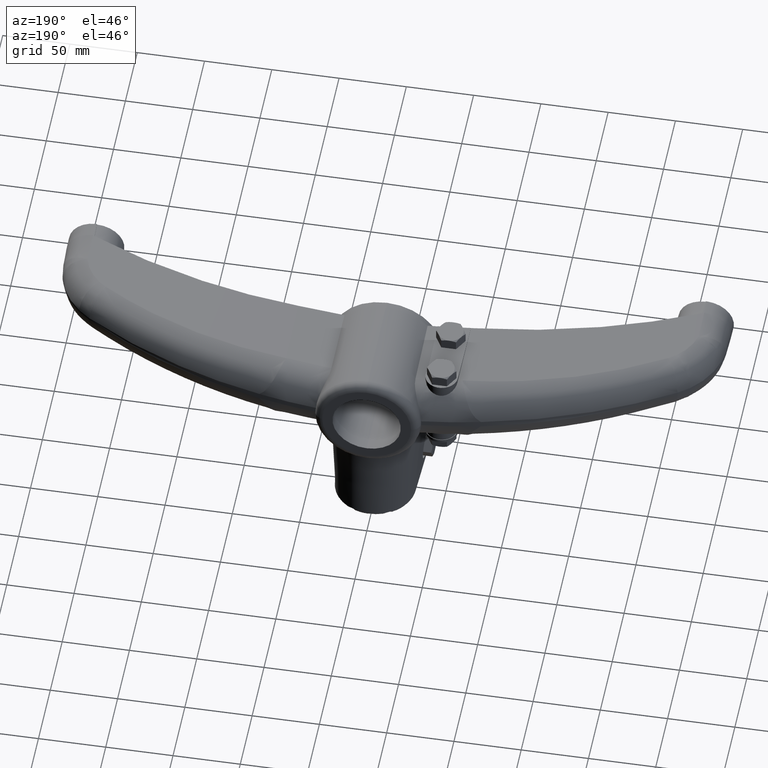
[diagram: clean part render]
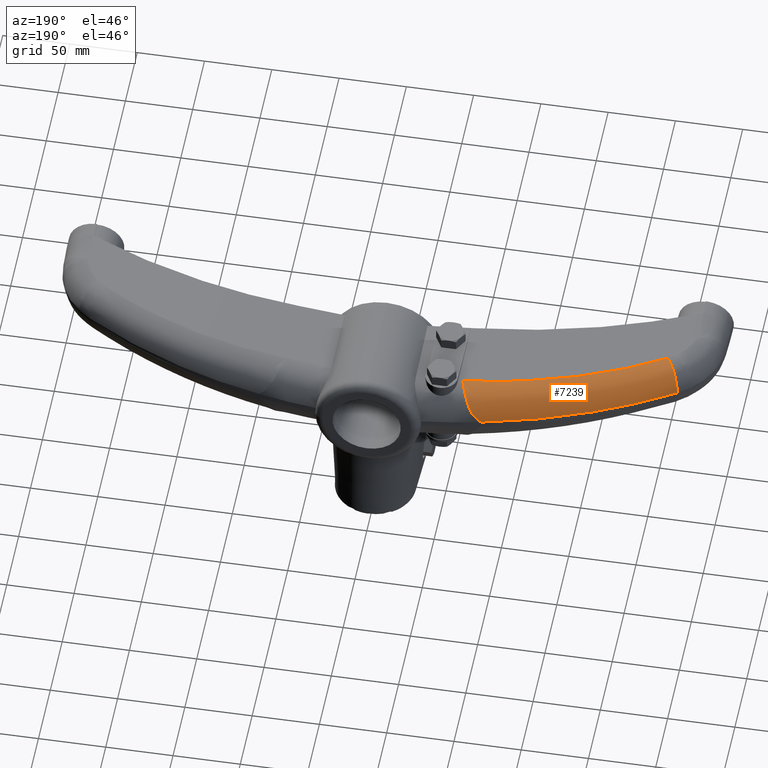
[diagram: same view with one face highlighted and labeled with its STEP entity id]
A machine part, auxiliary view. The second image highlights one B-rep face of the part: STEP entity #7239.
In plain terms, the highlighted face is a freeform B-spline surface patch.
Its self-contained STEP definition (entity closure, byte-faithful):
#437=CARTESIAN_POINT('',(-8.237888704673E1,1.862519706577E2,2.199974635272E0));
#439=CARTESIAN_POINT('',(-8.237888704673E1,1.862519706577E2,2.199974635272E0));
#440=CARTESIAN_POINT('',(-1.307547812898E2,1.761760374490E2,1.985017592644E0));
#441=CARTESIAN_POINT('',(-1.770685947099E2,1.571887857447E2,1.445394351976E0));
#442=CARTESIAN_POINT('',(-2.184670225128E2,1.305753383576E2,6.965159995473E-1));
#1802=CARTESIAN_POINT('',(-8.237888704673E1,1.862519706577E2,2.199974635272E0));
#1803=CARTESIAN_POINT('',(-8.114796420171E1,1.865083525173E2,3.260792035630E0));
#1804=CARTESIAN_POINT('',(-7.889253087060E1,1.868058613701E2,5.492979980444E0));
#1805=CARTESIAN_POINT('',(-7.624155421469E1,1.864935420018E2,9.026073202448E0));
#1806=CARTESIAN_POINT('',(-7.394246389858E1,1.853280115980E2,1.276066278407E1));
#1807=CARTESIAN_POINT('',(-7.194061495438E1,1.832201028768E2,1.639624248104E1));
#1808=CARTESIAN_POINT('',(-7.015360923998E1,1.802454378563E2,1.959664616671E1));
#1809=CARTESIAN_POINT('',(-6.852169718450E1,1.765664068193E2,2.210728638835E1));
#1810=CARTESIAN_POINT('',(-6.701070403855E1,1.723940575322E2,2.376550215468E1));
#1811=CARTESIAN_POINT('',(-6.605541198926E1,1.693967549136E2,2.424068192369E1));
#1812=CARTESIAN_POINT('',(-6.560508256716E1,1.679069407090E2,2.431265706786E1));
#1825=CARTESIAN_POINT('',(-6.560508256716E1,1.679069407090E2,2.431265706786E1));
#1857=CARTESIAN_POINT('',(-2.089255815380E2,1.150942233777E2,1.986708516746E1));
#1858=CARTESIAN_POINT('',(-1.980522365802E2,1.220475199992E2,2.010135453668E1));
#1859=CARTESIAN_POINT('',(-1.757176299903E2,1.346968730202E2,2.063983945585E1));
#1860=CARTESIAN_POINT('',(-1.402684039126E2,1.499858450890E2,2.166149421004E1));
#1861=CARTESIAN_POINT('',(-1.034224617610E2,1.613296849022E2,2.288245989294E1));
#1862=CARTESIAN_POINT('',(-7.832219530522E1,1.661637987845E2,2.381533221987E1));
#1863=CARTESIAN_POINT('',(-6.560508256716E1,1.679069407090E2,2.431265706786E1));
#2152=CARTESIAN_POINT('',(-2.089255815380E2,1.150942233777E2,1.986708516746E1));
#2153=CARTESIAN_POINT('',(-2.101120338507E2,1.169520643588E2,1.975006261289E1));
#2154=CARTESIAN_POINT('',(-2.126281950323E2,1.209152470977E2,1.871973566632E1));
#2155=CARTESIAN_POINT('',(-2.160252088080E2,1.263569649752E2,1.425546325032E1));
#2156=CARTESIAN_POINT('',(-2.181440395685E2,1.298654348860E2,7.615237549496E0));
#2157=CARTESIAN_POINT('',(-2.184965367055E2,1.305563648221E2,2.892764954565E0));
#2158=CARTESIAN_POINT('',(-2.184670225128E2,1.305753383576E2,
6.965159995473E-1));
#2801=VERTEX_POINT('',#437);
#2802=VERTEX_POINT('',#442);
#2882=VERTEX_POINT('',#1825);
#2884=VERTEX_POINT('',#1857);
#7136=CARTESIAN_POINT('',(-2.198161286307E2,1.296936933165E2,
8.441682517015E-2));
#7137=CARTESIAN_POINT('',(-2.193627955492E2,1.299876857008E2,
9.266250145631E-2));
#7138=CARTESIAN_POINT('',(-2.165137421147E2,1.318272236244E2,
1.442360696592E-1));
#7139=CARTESIAN_POINT('',(-2.112280639025E2,1.351464590947E2,
2.370539957385E-1));
#7140=CARTESIAN_POINT('',(-2.038915220344E2,1.395398394672E2,
3.592898096168E-1));
#7141=CARTESIAN_POINT('',(-1.964633567195E2,1.437771434403E2,
4.765262217713E-1));
#7142=CARTESIAN_POINT('',(-1.889455039758E2,1.478571500693E2,
5.887326039298E-1));
#7143=CARTESIAN_POINT('',(-1.813417614062E2,1.517776684705E2,
6.957909195500E-1));
#7144=CARTESIAN_POINT('',(-1.736565016590E2,1.555364032427E2,
7.975530984652E-1));
#7145=CARTESIAN_POINT('',(-1.658931041539E2,1.591316893474E2,
8.938938252446E-1));
#7146=CARTESIAN_POINT('',(-1.580545258005E2,1.625621148403E2,
9.847074491379E-1));
#7147=CARTESIAN_POINT('',(-1.501440361665E2,1.658261785482E2,1.069881234499E0));
#7148=CARTESIAN_POINT('',(-1.421650342916E2,1.689223971349E2,1.149287807820E0));
#7149=CARTESIAN_POINT('',(-1.341210013937E2,1.718493342297E2,1.222781553527E0));
#7150=CARTESIAN_POINT('',(-1.260154745891E2,1.746056113275E2,1.290211187440E0));
#7151=CARTESIAN_POINT('',(-1.178521706516E2,1.771898754521E2,1.351438386928E0));
#7152=CARTESIAN_POINT('',(-1.096347594582E2,1.796008849861E2,1.406320675663E0));
#7153=CARTESIAN_POINT('',(-1.013668977404E2,1.818374865379E2,1.454719207424E0));
#7154=CARTESIAN_POINT('',(-9.305198598973E1,1.838986698440E2,1.496423603884E0));
#7155=CARTESIAN_POINT('',(-8.469272176520E1,1.857836403824E2,1.531180180682E0));
#7156=CARTESIAN_POINT('',(-7.629006659248E1,1.874919402756E2,1.558822991836E0));
#7157=CARTESIAN_POINT('',(-7.030710912794E1,1.885765699462E2,1.573394756763E0));
#7158=CARTESIAN_POINT('',(-6.713000838617E1,1.891133517167E2,1.579624433327E0));
#7159=CARTESIAN_POINT('',(-6.677428187783E1,1.891729629376E2,1.580303101191E0));
#7160=CARTESIAN_POINT('',(-2.201599948453E2,1.298875482062E2,1.150786667182E1));
#7161=CARTESIAN_POINT('',(-2.197060626784E2,1.301822411432E2,1.151667646144E1));
#7162=CARTESIAN_POINT('',(-2.168532411153E2,1.320261733085E2,1.157210871244E1));
#7163=CARTESIAN_POINT('',(-2.115605372044E2,1.353534623470E2,1.167569983752E1));
#7164=CARTESIAN_POINT('',(-2.042141704869E2,1.397577886053E2,1.182116680032E1));
#7165=CARTESIAN_POINT('',(-1.967760176980E2,1.440059257611E2,1.197009103128E1));
#7166=CARTESIAN_POINT('',(-1.892479616646E2,1.480966806014E2,1.212242236937E1));
#7167=CARTESIAN_POINT('',(-1.816337077781E2,1.520279026249E2,1.227804717261E1));
#7168=CARTESIAN_POINT('',(-1.739375991869E2,1.557972973019E2,1.243682542581E1));
#7169=CARTESIAN_POINT('',(-1.661630083902E2,1.594031887075E2,1.259863731393E1));
#7170=CARTESIAN_POINT('',(-1.583128739050E2,1.628441587532E2,1.276337524111E1));
#7171=CARTESIAN_POINT('',(-1.503904235046E2,1.661187078195E2,1.293092140373E1));
#7172=CARTESIAN_POINT('',(-1.423990028243E2,1.692253548565E2,1.310114713450E1));
#7173=CARTESIAN_POINT('',(-1.343420393158E2,1.721626611841E2,1.327391208834E1));
#7174=CARTESIAN_POINT('',(-1.262230498265E2,1.749292305602E2,1.344907021500E1));
#7175=CARTESIAN_POINT('',(-1.180457206396E2,1.775236936823E2,1.362647438829E1));
#7176=CARTESIAN_POINT('',(-1.098136959461E2,1.799447891297E2,1.380597381817E1));
#7177=CARTESIAN_POINT('',(-1.015305473760E2,1.821913575906E2,1.398741553170E1));
#7178=CARTESIAN_POINT('',(-9.319951395491E1,1.842623944017E2,1.417061805310E1));
#7179=CARTESIAN_POINT('',(-8.482324902763E1,1.861570708801E2,1.435539674797E1));
#7180=CARTESIAN_POINT('',(-7.640296608460E1,1.878748356772E2,1.454164549208E1));
#7181=CARTESIAN_POINT('',(-7.040719438934E1,1.889659593612E2,1.467462142269E1));
#7182=CARTESIAN_POINT('',(-6.722318467555E1,1.895061168300E2,1.474533985939E1));
#7183=CARTESIAN_POINT('',(-6.686668324943E1,1.895661050970E2,1.475325923714E1));
#7184=CARTESIAN_POINT('',(-2.159756518816E2,1.231655134358E2,1.975144312104E1));
#7185=CARTESIAN_POINT('',(-2.155310086349E2,1.234539579962E2,1.976064596009E1));
#7186=CARTESIAN_POINT('',(-2.127364572395E2,1.252586082876E2,1.981877524376E1));
#7187=CARTESIAN_POINT('',(-2.075506443040E2,1.285128544377E2,1.992998608469E1));
#7188=CARTESIAN_POINT('',(-2.003502142130E2,1.328152051066E2,2.009202071489E1));
#7189=CARTESIAN_POINT('',(-1.930577506699E2,1.369593459504E2,2.026363106016E1));
#7190=CARTESIAN_POINT('',(-1.856754518212E2,1.409439616735E2,2.044475254647E1));
#7191=CARTESIAN_POINT('',(-1.782072912467E2,1.447668049387E2,2.063527485036E1));
#7192=CARTESIAN_POINT('',(-1.706578753799E2,1.484254970530E2,2.083506450926E1));
#7193=CARTESIAN_POINT('',(-1.630308658895E2,1.519182828336E2,2.104400647100E1));
#7194=CARTESIAN_POINT('',(-1.553295073778E2,1.552436802857E2,2.126199248304E1));
#7195=CARTESIAN_POINT('',(-1.475573322272E2,1.584001462876E2,2.148890198208E1));
#7196=CARTESIAN_POINT('',(-1.397179906834E2,1.613861700176E2,2.172460653594E1));
#7197=CARTESIAN_POINT('',(-1.318152145517E2,1.642002942259E2,2.196897106015E1));
#7198=CARTESIAN_POINT('',(-1.238528262593E2,1.668411186495E2,2.222185464647E1));
#7199=CARTESIAN_POINT('',(-1.158348183943E2,1.693072954345E2,2.248310532211E1));
#7200=CARTESIAN_POINT('',(-1.077651431135E2,1.715975985738E2,2.275256782129E1));
#7201=CARTESIAN_POINT('',(-9.964768107086E1,1.737109244852E2,2.303008144893E1));
#7202=CARTESIAN_POINT('',(-9.148598125987E1,1.756463106335E2,2.331548989919E1));
#7203=CARTESIAN_POINT('',(-8.328301418916E1,1.774029533246E2,2.360866165314E1));
#7204=CARTESIAN_POINT('',(-7.504036367627E1,1.789803329246E2,2.390953086486E1));
#7205=CARTESIAN_POINT('',(-6.917376805075E1,1.799704322370E2,2.412808945243E1));
#7206=CARTESIAN_POINT('',(-6.605924471488E1,1.804566581683E2,2.424542521736E1));
#7207=CARTESIAN_POINT('',(-6.571053465767E1,1.805106044307E2,2.425857878417E1));
#7208=CARTESIAN_POINT('',(-2.097754729154E2,1.135636491441E2,1.986551835264E1));
#7209=CARTESIAN_POINT('',(-2.093444293185E2,1.138426480637E2,1.987470718156E1));
#7210=CARTESIAN_POINT('',(-2.066351996742E2,1.155879260819E2,1.993275248900E1));
#7211=CARTESIAN_POINT('',(-2.016060146542E2,1.187318894722E2,2.004385451465E1));
#7212=CARTESIAN_POINT('',(-1.946196590485E2,1.228805715032E2,2.020584573241E1));
#7213=CARTESIAN_POINT('',(-1.875410863867E2,1.268683282536E2,2.037751923665E1));
#7214=CARTESIAN_POINT('',(-1.803729893210E2,1.306936458327E2,2.055880981407E1));
#7215=CARTESIAN_POINT('',(-1.731198089927E2,1.343541009914E2,2.074960739110E1));
#7216=CARTESIAN_POINT('',(-1.657865498233E2,1.378471963720E2,2.094977962116E1));
#7217=CARTESIAN_POINT('',(-1.583772851176E2,1.411710767509E2,2.115921261768E1));
#7218=CARTESIAN_POINT('',(-1.508957062601E2,1.443241768349E2,2.137779915411E1));
#7219=CARTESIAN_POINT('',(-1.433458137518E2,1.473048910649E2,2.160541987279E1));
#7220=CARTESIAN_POINT('',(-1.357317375685E2,1.501116646638E2,2.184194796436E1));
#7221=CARTESIAN_POINT('',(-1.280576892488E2,1.527430167024E2,2.208725043646E1));
#7222=CARTESIAN_POINT('',(-1.203279391711E2,1.551975590269E2,2.234118834361E1));
#7223=CARTESIAN_POINT('',(-1.125469391116E2,1.574739901284E2,2.260361173335E1));
#7224=CARTESIAN_POINT('',(-1.047190979347E2,1.595711533674E2,2.287436738951E1));
#7225=CARTESIAN_POINT('',(-9.684881389982E1,1.614880290801E2,2.315329793595E1));
#7226=CARTESIAN_POINT('',(-8.894023128955E1,1.632237080921E2,2.344025339155E1));
#7227=CARTESIAN_POINT('',(-8.099680872266E1,1.647774558439E2,2.373510752671E1));
#7228=CARTESIAN_POINT('',(-7.302039635327E1,1.661488905605E2,2.403779104633E1));
#7229=CARTESIAN_POINT('',(-6.734740689427E1,1.669911044104E2,2.425772503926E1));
#7230=CARTESIAN_POINT('',(-6.433704410959E1,1.673984732707E2,2.437581661320E1));
#7231=CARTESIAN_POINT('',(-6.400001359568E1,1.674435862325E2,2.438905512397E1));
#7232=(BOUNDED_SURFACE()B_SPLINE_SURFACE(3,3,((#7136,#7137,#7138,#7139,#7140,
#7141,#7142,#7143,#7144,#7145,#7146,#7147,#7148,#7149,#7150,#7151,#7152,#7153,
#7154,#7155,#7156,#7157,#7158,#7159),(#7160,#7161,#7162,#7163,#7164,#7165,#7166,
#7167,#7168,#7169,#7170,#7171,#7172,#7173,#7174,#7175,#7176,#7177,#7178,#7179,
#7180,#7181,#7182,#7183),(#7184,#7185,#7186,#7187,#7188,#7189,#7190,#7191,#7192,
#7193,#7194,#7195,#7196,#7197,#7198,#7199,#7200,#7201,#7202,#7203,#7204,#7205,
#7206,#7207),(#7208,#7209,#7210,#7211,#7212,#7213,#7214,#7215,#7216,#7217,#7218,
#7219,#7220,#7221,#7222,#7223,#7224,#7225,#7226,#7227,#7228,#7229,#7230,#7231)),
.UNSPECIFIED.,.F.,.F.,.F.)B_SPLINE_SURFACE_WITH_KNOTS((4,4),(4,1,1,1,1,1,1,1,1,
1,1,1,1,1,1,1,1,1,1,1,1,4),(0.E0,1.E0),(-9.983695918015E-3,0.E0,
5.267852467747E-2,1.053289841983E-1,1.579827496163E-1,2.106538794827E-1,
2.633226974906E-1,3.159809905505E-1,3.686327691967E-1,4.212798983057E-1,
4.739232695370E-1,5.265610127131E-1,5.791929916386E-1,6.318190706326E-1,
6.844368220739E-1,7.370432231793E-1,7.896396739795E-1,8.422245573312E-1,
8.948003198265E-1,9.473815787602E-1,1.E0,1.006632404227E0),.UNSPECIFIED.)GEOMETRIC_REPRESENTATION_ITEM()RATIONAL_B_SPLINE_SURFACE(((1.176616759853E0,
1.176616759853E0,1.176616759853E0,1.176616759853E0,1.176616759853E0,
1.176616759853E0,1.176616759853E0,1.176616759853E0,1.176616759853E0,
1.176616759853E0,1.176616759853E0,1.176616759853E0,1.176616759853E0,
1.176616759853E0,1.176616759853E0,1.176616759853E0,1.176616759853E0,
1.176616759853E0,1.176616759853E0,1.176616759853E0,1.176616759853E0,
1.176616759853E0,1.176616759853E0,1.176616759853E0),(9.411277467156E-1,
9.411277467156E-1,9.411277467156E-1,9.411277467156E-1,9.411277467156E-1,
9.411277467156E-1,9.411277467156E-1,9.411277467156E-1,9.411277467156E-1,
9.411277467156E-1,9.411277467156E-1,9.411277467156E-1,9.411277467156E-1,
9.411277467156E-1,9.411277467156E-1,9.411277467156E-1,9.411277467156E-1,
9.411277467156E-1,9.411277467156E-1,9.411277467156E-1,9.411277467156E-1,
9.411277467156E-1,9.411277467156E-1,9.411277467156E-1),(9.411277467156E-1,
9.411277467156E-1,9.411277467156E-1,9.411277467156E-1,9.411277467156E-1,
9.411277467156E-1,9.411277467156E-1,9.411277467156E-1,9.411277467156E-1,
9.411277467156E-1,9.411277467156E-1,9.411277467156E-1,9.411277467156E-1,
9.411277467156E-1,9.411277467156E-1,9.411277467156E-1,9.411277467156E-1,
9.411277467156E-1,9.411277467156E-1,9.411277467156E-1,9.411277467156E-1,
9.411277467156E-1,9.411277467156E-1,9.411277467156E-1),(1.176616759853E0,
1.176616759853E0,1.176616759853E0,1.176616759853E0,1.176616759853E0,
1.176616759853E0,1.176616759853E0,1.176616759853E0,1.176616759853E0,
1.176616759853E0,1.176616759853E0,1.176616759853E0,1.176616759853E0,
1.176616759853E0,1.176616759853E0,1.176616759853E0,1.176616759853E0,
1.176616759853E0,1.176616759853E0,1.176616759853E0,1.176616759853E0,
1.176616759853E0,1.176616759853E0,1.176616759853E0)))REPRESENTATION_ITEM('')SURFACE());
#7233=ORIENTED_EDGE('',*,*,#6254,.F.);
#7234=ORIENTED_EDGE('',*,*,#7131,.T.);
#7235=ORIENTED_EDGE('',*,*,#3849,.F.);
#7236=ORIENTED_EDGE('',*,*,#6226,.T.);
#7237=EDGE_LOOP('',(#7233,#7234,#7235,#7236));
#7238=FACE_OUTER_BOUND('',#7237,.F.);
#443=B_SPLINE_CURVE_WITH_KNOTS('',3,(#439,#440,#441,#442),.UNSPECIFIED.,.F.,.F.,
(4,4),(0.E0,1.E0),.UNSPECIFIED.);
#1813=B_SPLINE_CURVE_WITH_KNOTS('',3,(#1802,#1803,#1804,#1805,#1806,#1807,#1808,
#1809,#1810,#1811,#1812),.UNSPECIFIED.,.F.,.F.,(4,1,1,1,1,1,1,1,4),(0.E0,
1.25E-1,2.5E-1,3.75E-1,5.E-1,6.25E-1,7.5E-1,8.75E-1,1.E0),.UNSPECIFIED.);
#1864=B_SPLINE_CURVE_WITH_KNOTS('',3,(#1857,#1858,#1859,#1860,#1861,#1862,
#1863),.UNSPECIFIED.,.F.,.F.,(4,1,1,1,4),(0.E0,2.5E-1,5.E-1,7.5E-1,1.E0),
.UNSPECIFIED.);
#2159=B_SPLINE_CURVE_WITH_KNOTS('',3,(#2152,#2153,#2154,#2155,#2156,#2157,
#2158),.UNSPECIFIED.,.F.,.F.,(4,1,1,1,4),(0.E0,2.5E-1,5.E-1,7.5E-1,1.E0),
.UNSPECIFIED.);
#3849=EDGE_CURVE('',#2801,#2802,#443,.T.);
#6226=EDGE_CURVE('',#2801,#2882,#1813,.T.);
#6254=EDGE_CURVE('',#2884,#2882,#1864,.T.);
#7131=EDGE_CURVE('',#2884,#2802,#2159,.T.);
#7239=ADVANCED_FACE('',(#7238),#7232,.T.);